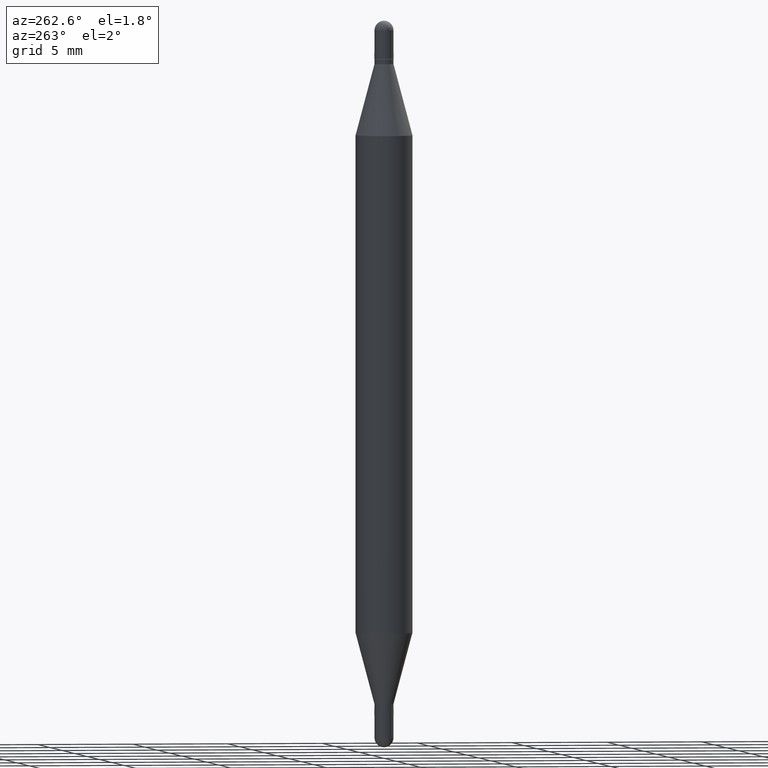
[diagram: clean part render]
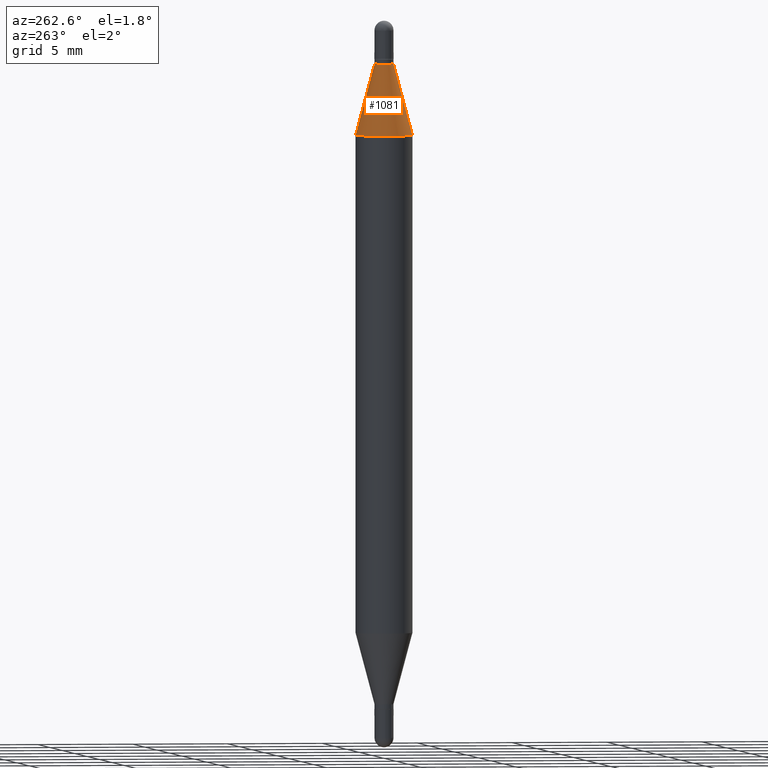
[diagram: same view with one face highlighted and labeled with its STEP entity id]
A machine part, auxiliary view. The second image highlights one B-rep face of the part: STEP entity #1081.
In plain terms, the highlighted conical surface has half-angle 15 deg.
Its self-contained STEP definition (entity closure, byte-faithful):
#25 = CIRCLE ( 'NONE', #663, 0.01969999999999976631 ) ;
#44 = DIRECTION ( 'NONE',  ( 1.775627540710965497E-15, 0.2588190451025182970, -0.9659258262890689783 ) ) ;
#99 = DIRECTION ( 'NONE',  ( -6.982962677686265922E-15, -1.000000000000000000, 3.469747663417775819E-15 ) ) ;
#114 = CARTESIAN_POINT ( 'NONE',  ( -4.123439461173434150E-16, -0.05905000000000085181, -0.2358561992778356042 ) ) ;
#118 = CIRCLE ( 'NONE', #311, 0.05905000000000002608 ) ;
#127 = EDGE_CURVE ( 'NONE', #934, #794, #984, .T. ) ;
#167 = DIRECTION ( 'NONE',  ( -6.982962677686265922E-15, -1.000000000000000000, 3.466812174700882903E-15 ) ) ;
#200 = ORIENTED_EDGE ( 'NONE', *, *, #901, .F. ) ;
#242 = ORIENTED_EDGE ( 'NONE', *, *, #961, .T. ) ;
#293 = DIRECTION ( 'NONE',  ( -6.982962677686265922E-15, -1.000000000000000000, 3.466812174700882903E-15 ) ) ;
#302 = CARTESIAN_POINT ( 'NONE',  ( 1.351518105561318824E-16, 0.01969999999999943671, -0.08900000000000013456 ) ) ;
#311 = AXIS2_PLACEMENT_3D ( 'NONE', #957, #1118, #99 ) ;
#319 = CARTESIAN_POINT ( 'NONE',  ( -1.375643647503834691E-16, -0.01970000000000009591, -0.08899999999999999578 ) ) ;
#335 = VECTOR ( 'NONE', #44, 39.37007874015748143 ) ;
#356 = FACE_OUTER_BOUND ( 'NONE', #831, .T. ) ;
#473 = EDGE_CURVE ( 'NONE', #934, #856, #25, .T. ) ;
#482 = LINE ( 'NONE', #1040, #1097 ) ;
#588 = CARTESIAN_POINT ( 'NONE',  ( 3.433665956363208741E-29, -3.290929031521682305E-16, -0.08900000000000006517 ) ) ;
#650 = CONICAL_SURFACE ( 'NONE', #726, 0.01969999999999976631, 0.2617993877991502960 ) ;
#663 = AXIS2_PLACEMENT_3D ( 'NONE', #588, #937, #167 ) ;
#679 = CARTESIAN_POINT ( 'NONE',  ( 1.351518105561320303E-16, 0.01969999999999943671, -0.08900000000000013456 ) ) ;
#706 = ORIENTED_EDGE ( 'NONE', *, *, #127, .T. ) ;
#726 = AXIS2_PLACEMENT_3D ( 'NONE', #728, #976, #293 ) ;
#728 = CARTESIAN_POINT ( 'NONE',  ( 3.433665956363208741E-29, -3.290929031521682305E-16, -0.08900000000000006517 ) ) ;
#740 = CARTESIAN_POINT ( 'NONE',  ( 4.051124067684397324E-16, 0.05904999999999918647, -0.2358561992778360206 ) ) ;
#759 = VERTEX_POINT ( 'NONE', #114 ) ;
#794 = VERTEX_POINT ( 'NONE', #740 ) ;
#820 = ORIENTED_EDGE ( 'NONE', *, *, #473, .F. ) ;
#831 = EDGE_LOOP ( 'NONE', ( #820, #706, #242, #200 ) ) ;
#856 = VERTEX_POINT ( 'NONE', #319 ) ;
#901 = EDGE_CURVE ( 'NONE', #856, #759, #482, .T. ) ;
#934 = VERTEX_POINT ( 'NONE', #679 ) ;
#937 = DIRECTION ( 'NONE',  ( 2.440243022076049801E-29, 3.472130846700455674E-15, 1.000000000000000000 ) ) ;
#957 = CARTESIAN_POINT ( 'NONE',  ( 3.075301140826860747E-29, -8.389968426939312005E-16, -0.2358561992778358263 ) ) ;
#961 = EDGE_CURVE ( 'NONE', #794, #759, #118, .T. ) ;
#964 = DIRECTION ( 'NONE',  ( -1.807323732225330534E-15, -0.2588190451025249583, -0.9659258262890670910 ) ) ;
#976 = DIRECTION ( 'NONE',  ( -2.440243022076049801E-29, -3.472130846700455674E-15, -1.000000000000000000 ) ) ;
#984 = LINE ( 'NONE', #302, #335 ) ;
#1040 = CARTESIAN_POINT ( 'NONE',  ( -1.375643647503834691E-16, -0.01970000000000009591, -0.08899999999999999578 ) ) ;
#1081 = ADVANCED_FACE ( 'NONE', ( #356 ), #650, .T. ) ;
#1097 = VECTOR ( 'NONE', #964, 39.37007874015748143 ) ;
#1118 = DIRECTION ( 'NONE',  ( 2.440243022076049801E-29, 3.472130846700455674E-15, 1.000000000000000000 ) ) ;